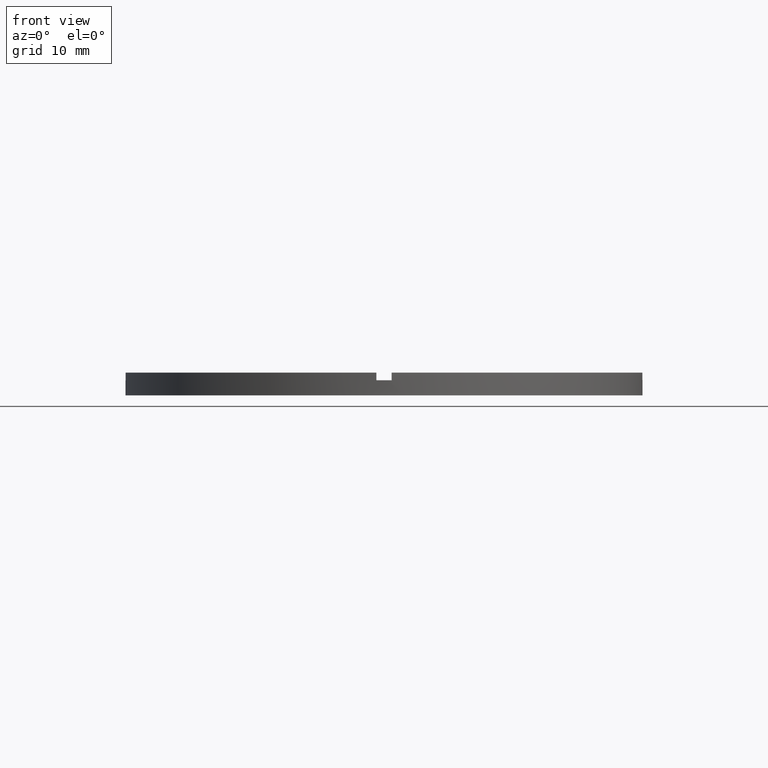
[diagram: clean part render]
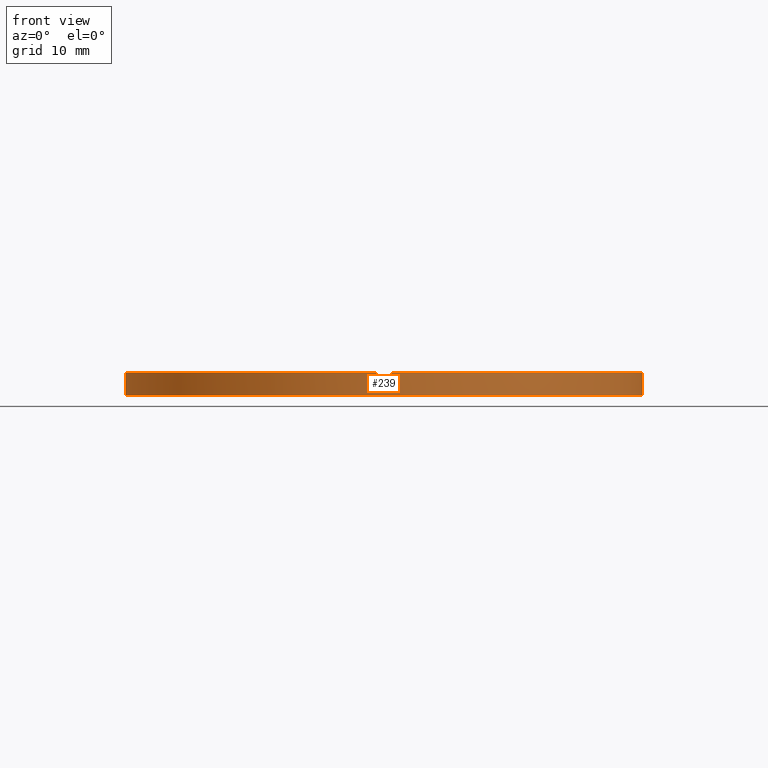
[diagram: same view with one face highlighted and labeled with its STEP entity id]
A machine part, front view. The second image highlights one B-rep face of the part: STEP entity #239.
In plain terms, the highlighted cylindrical surface (partial cylindrical patch) has radius 34 mm, axis along (-0, -0, -1).
Its self-contained STEP definition (entity closure, byte-faithful):
#5 = EDGE_CURVE ( 'NONE', #489, #9, #764, .T. ) ;
#9 = VERTEX_POINT ( 'NONE', #409 ) ;
#13 = DIRECTION ( 'NONE',  ( 1.000000000000000000, 0.000000000000000000, 0.000000000000000000 ) ) ;
#17 = AXIS2_PLACEMENT_3D ( 'NONE', #294, #299, #387 ) ;
#37 = CARTESIAN_POINT ( 'NONE',  ( 0.000000000000000000, 0.000000000000000000, 3.000000000000000000 ) ) ;
#43 = ORIENTED_EDGE ( 'NONE', *, *, #378, .F. ) ;
#45 = DIRECTION ( 'NONE',  ( 0.000000000000000000, 0.000000000000000000, 1.000000000000000000 ) ) ;
#52 = CARTESIAN_POINT ( 'NONE',  ( 34.00000000000000000, 4.163799117101000559E-15, 2.000000000000000000 ) ) ;
#54 = CARTESIAN_POINT ( 'NONE',  ( 0.9999999999998393507, -33.98529093593285921, 2.000000000000000000 ) ) ;
#62 = ORIENTED_EDGE ( 'NONE', *, *, #633, .T. ) ;
#68 = VERTEX_POINT ( 'NONE', #334 ) ;
#75 = DIRECTION ( 'NONE',  ( 0.000000000000000000, 0.000000000000000000, 1.000000000000000000 ) ) ;
#85 = AXIS2_PLACEMENT_3D ( 'NONE', #272, #75, #222 ) ;
#88 = VECTOR ( 'NONE', #45, 1000.000000000000000 ) ;
#89 = VECTOR ( 'NONE', #730, 1000.000000000000000 ) ;
#99 = VECTOR ( 'NONE', #686, 1000.000000000000000 ) ;
#101 = LINE ( 'NONE', #349, #396 ) ;
#102 = CIRCLE ( 'NONE', #85, 34.00000000000000000 ) ;
#104 = LINE ( 'NONE', #356, #381 ) ;
#119 = VERTEX_POINT ( 'NONE', #54 ) ;
#124 = FACE_OUTER_BOUND ( 'NONE', #642, .T. ) ;
#129 = CARTESIAN_POINT ( 'NONE',  ( 0.000000000000000000, 0.000000000000000000, 2.000000000000000000 ) ) ;
#156 = LINE ( 'NONE', #615, #166 ) ;
#166 = VECTOR ( 'NONE', #440, 1000.000000000000000 ) ;
#186 = CARTESIAN_POINT ( 'NONE',  ( -33.98529093593285211, -1.000000000000026423, 3.000000000000000000 ) ) ;
#214 = VERTEX_POINT ( 'NONE', #757 ) ;
#220 = ORIENTED_EDGE ( 'NONE', *, *, #453, .T. ) ;
#222 = DIRECTION ( 'NONE',  ( 1.000000000000000000, 0.000000000000000000, 0.000000000000000000 ) ) ;
#234 = ORIENTED_EDGE ( 'NONE', *, *, #554, .F. ) ;
#239 = ADVANCED_FACE ( 'NONE', ( #124 ), #401, .T. ) ;
#244 = EDGE_CURVE ( 'NONE', #339, #9, #353, .T. ) ;
#258 = EDGE_CURVE ( 'NONE', #450, #494, #632, .T. ) ;
#265 = AXIS2_PLACEMENT_3D ( 'NONE', #547, #630, #702 ) ;
#272 = CARTESIAN_POINT ( 'NONE',  ( 0.000000000000000000, 0.000000000000000000, 3.000000000000000000 ) ) ;
#287 = DIRECTION ( 'NONE',  ( 1.000000000000000000, 0.000000000000000000, 0.000000000000000000 ) ) ;
#294 = CARTESIAN_POINT ( 'NONE',  ( 0.000000000000000000, 0.000000000000000000, 3.000000000000000000 ) ) ;
#296 = AXIS2_PLACEMENT_3D ( 'NONE', #743, #464, #13 ) ;
#299 = DIRECTION ( 'NONE',  ( -0.000000000000000000, -0.000000000000000000, -1.000000000000000000 ) ) ;
#303 = AXIS2_PLACEMENT_3D ( 'NONE', #37, #535, #676 ) ;
#314 = ORIENTED_EDGE ( 'NONE', *, *, #490, .F. ) ;
#318 = CARTESIAN_POINT ( 'NONE',  ( 33.98529093593285211, -1.000000000000158096, 2.000000000000000000 ) ) ;
#321 = EDGE_CURVE ( 'NONE', #395, #384, #102, .T. ) ;
#333 = EDGE_CURVE ( 'NONE', #450, #119, #619, .T. ) ;
#334 = CARTESIAN_POINT ( 'NONE',  ( -34.00000000000000000, 0.000000000000000000, 0.000000000000000000 ) ) ;
#336 = ORIENTED_EDGE ( 'NONE', *, *, #5, .F. ) ;
#337 = DIRECTION ( 'NONE',  ( 0.000000000000000000, 0.000000000000000000, 1.000000000000000000 ) ) ;
#339 = VERTEX_POINT ( 'NONE', #186 ) ;
#345 = VERTEX_POINT ( 'NONE', #318 ) ;
#349 = CARTESIAN_POINT ( 'NONE',  ( 34.00000000000000000, 4.163799117101000559E-15, 3.000000000000000000 ) ) ;
#353 = LINE ( 'NONE', #690, #89 ) ;
#356 = CARTESIAN_POINT ( 'NONE',  ( 33.98529093593285211, -1.000000000000158096, 3.000000000000000000 ) ) ;
#367 = CIRCLE ( 'NONE', #265, 34.00000000000000000 ) ;
#378 = EDGE_CURVE ( 'NONE', #698, #214, #101, .T. ) ;
#381 = VECTOR ( 'NONE', #337, 1000.000000000000000 ) ;
#384 = VERTEX_POINT ( 'NONE', #475 ) ;
#387 = DIRECTION ( 'NONE',  ( -1.000000000000000000, 0.000000000000000000, 0.000000000000000000 ) ) ;
#395 = VERTEX_POINT ( 'NONE', #672 ) ;
#396 = VECTOR ( 'NONE', #435, 1000.000000000000000 ) ;
#401 = CYLINDRICAL_SURFACE ( 'NONE', #17, 34.00000000000000000 ) ;
#409 = CARTESIAN_POINT ( 'NONE',  ( -33.98529093593285211, -1.000000000000026423, 2.000000000000000000 ) ) ;
#410 = ORIENTED_EDGE ( 'NONE', *, *, #258, .T. ) ;
#433 = DIRECTION ( 'NONE',  ( 0.000000000000000000, 0.000000000000000000, 1.000000000000000000 ) ) ;
#435 = DIRECTION ( 'NONE',  ( -0.000000000000000000, -0.000000000000000000, -1.000000000000000000 ) ) ;
#440 = DIRECTION ( 'NONE',  ( -0.000000000000000000, -0.000000000000000000, -1.000000000000000000 ) ) ;
#450 = VERTEX_POINT ( 'NONE', #541 ) ;
#453 = EDGE_CURVE ( 'NONE', #489, #68, #653, .T. ) ;
#464 = DIRECTION ( 'NONE',  ( 0.000000000000000000, 0.000000000000000000, 1.000000000000000000 ) ) ;
#474 = CARTESIAN_POINT ( 'NONE',  ( -34.00000000000000000, 0.000000000000000000, 2.000000000000000000 ) ) ;
#475 = CARTESIAN_POINT ( 'NONE',  ( 33.98529093593285211, -1.000000000000158096, 3.000000000000000000 ) ) ;
#476 = EDGE_CURVE ( 'NONE', #68, #214, #367, .T. ) ;
#481 = ORIENTED_EDGE ( 'NONE', *, *, #321, .F. ) ;
#489 = VERTEX_POINT ( 'NONE', #474 ) ;
#490 = EDGE_CURVE ( 'NONE', #345, #698, #625, .T. ) ;
#494 = VERTEX_POINT ( 'NONE', #773 ) ;
#496 = CARTESIAN_POINT ( 'NONE',  ( -1.000000000000160760, -33.98529093593285211, 3.000000000000000000 ) ) ;
#505 = ORIENTED_EDGE ( 'NONE', *, *, #476, .T. ) ;
#524 = EDGE_CURVE ( 'NONE', #345, #384, #104, .T. ) ;
#535 = DIRECTION ( 'NONE',  ( 0.000000000000000000, 0.000000000000000000, 1.000000000000000000 ) ) ;
#540 = DIRECTION ( 'NONE',  ( 1.000000000000000000, 0.000000000000000000, 0.000000000000000000 ) ) ;
#541 = CARTESIAN_POINT ( 'NONE',  ( -1.000000000000160760, -33.98529093593285211, 2.000000000000000000 ) ) ;
#547 = CARTESIAN_POINT ( 'NONE',  ( 0.000000000000000000, 0.000000000000000000, 0.000000000000000000 ) ) ;
#550 = AXIS2_PLACEMENT_3D ( 'NONE', #129, #589, #287 ) ;
#554 = EDGE_CURVE ( 'NONE', #339, #494, #643, .T. ) ;
#589 = DIRECTION ( 'NONE',  ( -0.000000000000000000, 0.000000000000000000, 1.000000000000000000 ) ) ;
#599 = CARTESIAN_POINT ( 'NONE',  ( -34.00000000000000000, 0.000000000000000000, 3.000000000000000000 ) ) ;
#615 = CARTESIAN_POINT ( 'NONE',  ( 0.9999999999998393507, -33.98529093593285921, 3.000000000000000000 ) ) ;
#619 = CIRCLE ( 'NONE', #550, 34.00000000000000000 ) ;
#625 = CIRCLE ( 'NONE', #680, 34.00000000000000000 ) ;
#630 = DIRECTION ( 'NONE',  ( 0.000000000000000000, 0.000000000000000000, 1.000000000000000000 ) ) ;
#632 = LINE ( 'NONE', #496, #88 ) ;
#633 = EDGE_CURVE ( 'NONE', #395, #119, #156, .T. ) ;
#642 = EDGE_LOOP ( 'NONE', ( #43, #314, #687, #481, #62, #664, #410, #234, #741, #336, #220, #505 ) ) ;
#643 = CIRCLE ( 'NONE', #303, 34.00000000000000000 ) ;
#653 = LINE ( 'NONE', #599, #99 ) ;
#660 = CARTESIAN_POINT ( 'NONE',  ( 0.000000000000000000, 0.000000000000000000, 2.000000000000000000 ) ) ;
#664 = ORIENTED_EDGE ( 'NONE', *, *, #333, .F. ) ;
#672 = CARTESIAN_POINT ( 'NONE',  ( 0.9999999999998393507, -33.98529093593285921, 3.000000000000000000 ) ) ;
#676 = DIRECTION ( 'NONE',  ( 1.000000000000000000, 0.000000000000000000, 0.000000000000000000 ) ) ;
#680 = AXIS2_PLACEMENT_3D ( 'NONE', #660, #433, #540 ) ;
#686 = DIRECTION ( 'NONE',  ( -0.000000000000000000, -0.000000000000000000, -1.000000000000000000 ) ) ;
#687 = ORIENTED_EDGE ( 'NONE', *, *, #524, .T. ) ;
#690 = CARTESIAN_POINT ( 'NONE',  ( -33.98529093593285211, -1.000000000000026423, 3.000000000000000000 ) ) ;
#698 = VERTEX_POINT ( 'NONE', #52 ) ;
#702 = DIRECTION ( 'NONE',  ( 1.000000000000000000, 0.000000000000000000, 0.000000000000000000 ) ) ;
#730 = DIRECTION ( 'NONE',  ( -0.000000000000000000, -0.000000000000000000, -1.000000000000000000 ) ) ;
#741 = ORIENTED_EDGE ( 'NONE', *, *, #244, .T. ) ;
#743 = CARTESIAN_POINT ( 'NONE',  ( 0.000000000000000000, 0.000000000000000000, 2.000000000000000000 ) ) ;
#757 = CARTESIAN_POINT ( 'NONE',  ( 34.00000000000000000, 4.163799117101000559E-15, 0.000000000000000000 ) ) ;
#764 = CIRCLE ( 'NONE', #296, 34.00000000000000000 ) ;
#773 = CARTESIAN_POINT ( 'NONE',  ( -1.000000000000160760, -33.98529093593285211, 3.000000000000000000 ) ) ;